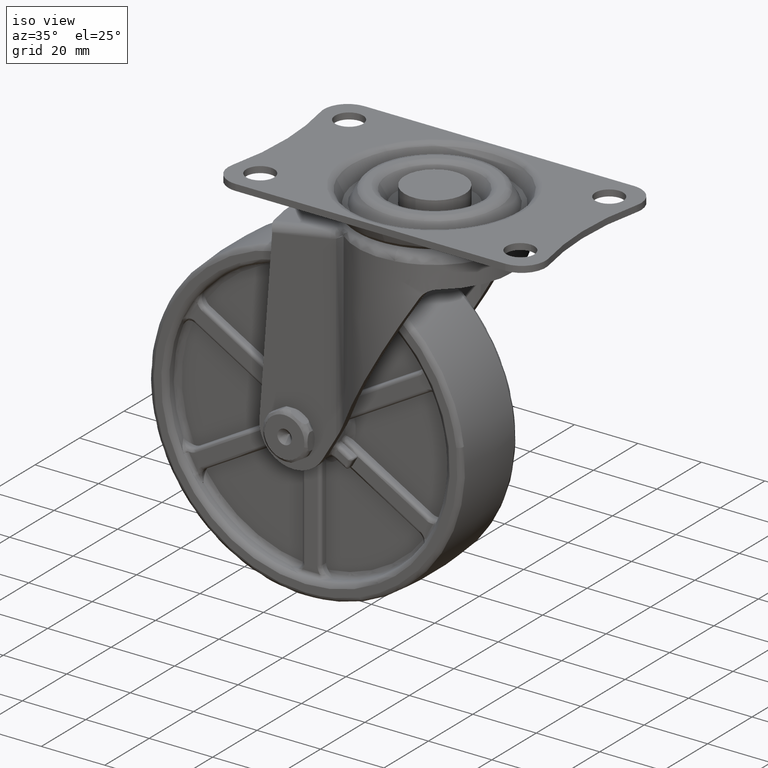
[diagram: clean part render]
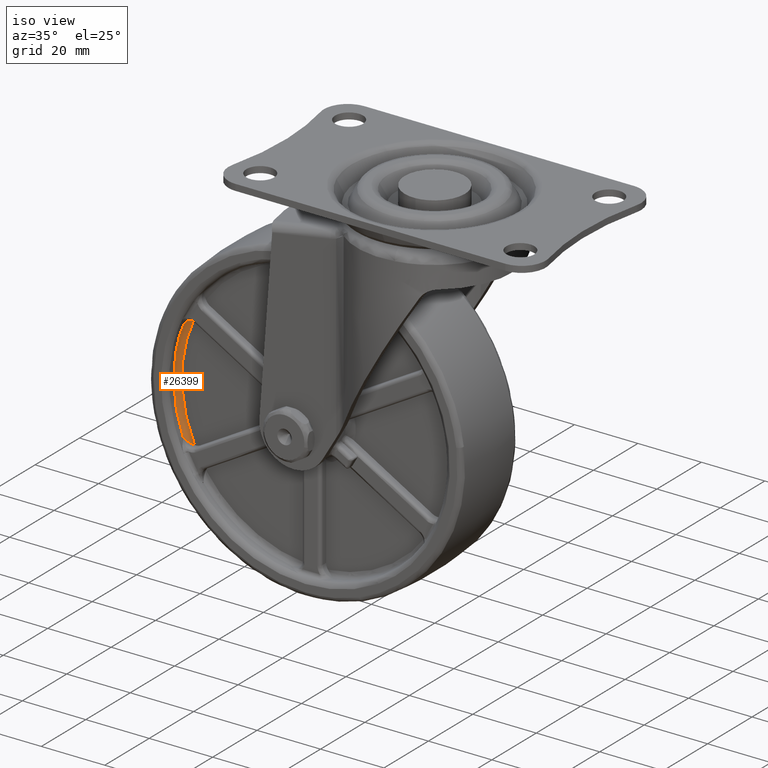
[diagram: same view with one face highlighted and labeled with its STEP entity id]
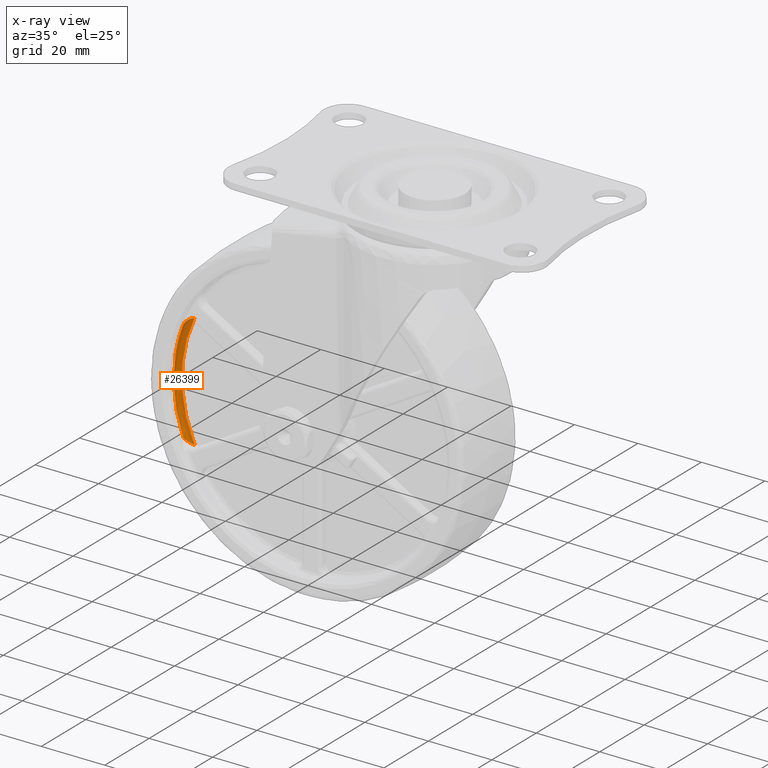
[diagram: x-ray of the same camera — body ghosted, the highlighted face saturated]
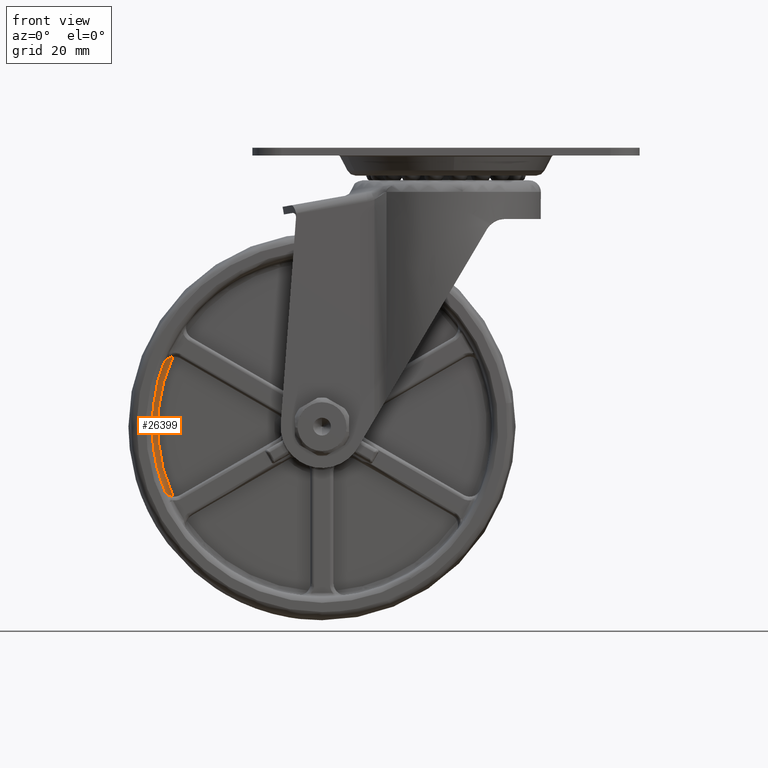
[diagram: same view with one face highlighted and labeled with its STEP entity id]
A machine part, iso view. The second image highlights one B-rep face of the part: STEP entity #26399.
The next image is the same camera in x-ray: the body ghosted, the highlighted face saturated — about 0% of this face is hidden behind the body in this view.
A second angle (front view) of the same face is appended — the face is thin or edge-on in the first view.
In plain terms, the highlighted face is a freeform B-spline surface patch.
Its self-contained STEP definition (entity closure, byte-faithful):
#3917=CARTESIAN_POINT('',(-72.914395647206106,-9.0,-53.813208198537602));
#3918=VERTEX_POINT('',#3917);
#5299=CARTESIAN_POINT('',(-72.914395885036797,-9.0,-86.186791895554194));
#5300=VERTEX_POINT('',#5299);
#22226=CARTESIAN_POINT('',(-70.470402237259506,-7.500000000000000,-88.063171141952310));
#22227=VERTEX_POINT('',#22226);
#22228=CARTESIAN_POINT('',(-72.914395885036797,-9.0,-86.186791895554194));
#22229=CARTESIAN_POINT('',(-72.908702617335962,-8.989535696261925,-86.201182101616382));
#22230=CARTESIAN_POINT('',(-72.902813369143502,-8.978734853724406,-86.215738611512450));
#22231=CARTESIAN_POINT('',(-72.890861923994109,-8.957394824286967,-86.244621922717698));
#22232=CARTESIAN_POINT('',(-72.872612270623492,-8.925428105459275,-86.287767791709925));
#22233=CARTESIAN_POINT('',(-72.827790348847003,-8.851116959345315,-86.387179716769381));
#22234=CARTESIAN_POINT('',(-72.785559635496995,-8.787925073971405,-86.470266048198880));
#22235=CARTESIAN_POINT('',(-72.696016410433515,-8.662310224850858,-86.633684229287738));
#22236=CARTESIAN_POINT('',(-72.629572154180252,-8.579585124270786,-86.738969280112173));
#22237=CARTESIAN_POINT('',(-72.482570166922926,-8.416829192059595,-86.942328883444503));
#22238=CARTESIAN_POINT('',(-72.402024570057392,-8.336790634396447,-87.040405381154585));
#22239=CARTESIAN_POINT('',(-72.269414437516630,-8.219482240654941,-87.181887724514482));
#22240=CARTESIAN_POINT('',(-72.223087900000280,-8.180732686167765,-87.228233475111821));
#22241=CARTESIAN_POINT('',(-72.127348643777097,-8.105249678760847,-87.317875448565715));
#22242=CARTESIAN_POINT('',(-72.077859502067270,-8.068434819909244,-87.361271683896419));
#22243=CARTESIAN_POINT('',(-71.924323047674690,-7.961046441683411,-87.487134383030977));
#22244=CARTESIAN_POINT('',(-71.815258377078734,-7.893481544485504,-87.565304875894270));
#22245=CARTESIAN_POINT('',(-71.640008079733136,-7.799935540149920,-87.673279373453070));
#22246=CARTESIAN_POINT('',(-71.579638056932637,-7.770063597226840,-87.707717296544416));
#22247=CARTESIAN_POINT('',(-71.454532246242167,-7.713417629868404,-87.773266081260601));
#22248=CARTESIAN_POINT('',(-71.390430552739360,-7.686940357820510,-87.804034592199727));
#22249=CARTESIAN_POINT('',(-71.193969708447142,-7.614045056852975,-87.889791221335685));
#22250=CARTESIAN_POINT('',(-71.057202678203836,-7.573864952638016,-87.938461582119785));
#22251=CARTESIAN_POINT('',(-70.877355572374029,-7.538018605235925,-87.987457041820747));
#22252=CARTESIAN_POINT('',(-70.840820761404018,-7.531564581156313,-87.996684441846483));
#22253=CARTESIAN_POINT('',(-70.767473368329874,-7.520373751038380,-88.013737439609045));
#22254=CARTESIAN_POINT('',(-70.730665167883458,-7.515630961999784,-88.021567755934896));
#22255=CARTESIAN_POINT('',(-70.619832395305693,-7.504101555700170,-88.042975431201612));
#22256=CARTESIAN_POINT('',(-70.545400666212217,-7.499999999998106,-88.054472798057148));
#22257=CARTESIAN_POINT('',(-70.470402237259506,-7.500000000000000,-88.063171141952310));
#22258=B_SPLINE_CURVE_WITH_KNOTS('',3,(#22228,#22229,#22230,#22231,#22232,#22233,#22234,#22235,#22236,#22237,#22238,#22239,#22240,#22241,#22242,#22243,#22244,#22245,#22246,#22247,#22248,#22249,#22250,#22251,#22252,#22253,#22254,#22255,#22256,#22257),.UNSPECIFIED.,.F.,.U.,(4,2,1,1,2,2,2,2,2,2,2,2,2,2,2,4),(0.0,0.015625000000006,0.031250000000013,0.062500000000017,0.125000000000016,0.250000000000010,0.375000000000005,0.437500000000005,0.500000000000006,0.625000000000000,0.687499999999996,0.749999999999993,0.874999999999991,0.906249999999990,0.937499999999990,1.0),.UNSPECIFIED.);
#22259=EDGE_CURVE('',#5300,#22227,#22258,.T.);
#22527=CARTESIAN_POINT('',(-70.470402237250710,-7.500000000000000,-51.936828858046503));
#22528=VERTEX_POINT('',#22527);
#22529=CARTESIAN_POINT('',(-70.470402237250710,-7.499999999999999,-51.936828858046532));
#22530=CARTESIAN_POINT('',(-70.508243024257894,-7.499999999999838,-51.941217645694998));
#22531=CARTESIAN_POINT('',(-70.546049260054389,-7.501054602804579,-51.946337628403732));
#22532=CARTESIAN_POINT('',(-70.620818191600719,-7.505077757625161,-51.957904677410660));
#22533=CARTESIAN_POINT('',(-70.657898621561301,-7.508045664662984,-51.964364762226737));
#22534=CARTESIAN_POINT('',(-70.768276942830497,-7.519575646276440,-51.985722386078670));
#22535=CARTESIAN_POINT('',(-70.840714402207595,-7.530752896035222,-52.002593659261862));
#22536=CARTESIAN_POINT('',(-70.983480293836152,-7.559134113965602,-52.041422109221017));
#22537=CARTESIAN_POINT('',(-71.053857026279246,-7.576356531539811,-52.063397303176266));
#22538=CARTESIAN_POINT('',(-71.192414227459423,-7.616135243524523,-52.112294186813138));
#22539=CARTESIAN_POINT('',(-71.259569212310737,-7.638387648539955,-52.138845929342487));
#22540=CARTESIAN_POINT('',(-71.455429783153420,-7.711053042212532,-52.224333111005443));
#22541=CARTESIAN_POINT('',(-71.578579264827681,-7.767308138115866,-52.289063269862687));
#22542=CARTESIAN_POINT('',(-71.753886918296885,-7.860644239239718,-52.396791814595232));
#22543=CARTESIAN_POINT('',(-71.810844879547872,-7.893334648297355,-52.434560384274661));
#22544=CARTESIAN_POINT('',(-71.921281255705807,-7.961180181436641,-52.513277703773319));
#22545=CARTESIAN_POINT('',(-71.974370370322603,-7.996084833664013,-52.553935528505242));
#22546=CARTESIAN_POINT('',(-72.127820332579020,-8.103312837832627,-52.679599087790471));
#22547=CARTESIAN_POINT('',(-72.222401653068516,-8.178127634473638,-52.768276084890353));
#22548=CARTESIAN_POINT('',(-72.397911468091934,-8.332927749992503,-52.954896836806007));
#22549=CARTESIAN_POINT('',(-72.478825289560305,-8.412925802674451,-53.052844585803612));
#22550=CARTESIAN_POINT('',(-72.590455836071044,-8.536162161260764,-53.206750865293174));
#22551=CARTESIAN_POINT('',(-72.626027173639088,-8.577788947110264,-53.259230194417647));
#22552=CARTESIAN_POINT('',(-72.693344159343468,-8.661284617046638,-53.365586201769482));
#22553=CARTESIAN_POINT('',(-72.757011882256961,-8.745210839695794,-53.473572947358782));
#22554=CARTESIAN_POINT('',(-72.813575608555965,-8.829837650197055,-53.584839552171182));
#22555=CARTESIAN_POINT('',(-72.853365672622203,-8.893517871317286,-53.669542928663262));
#22556=CARTESIAN_POINT('',(-72.866189877505505,-8.914779549433566,-53.697986547535820));
#22557=CARTESIAN_POINT('',(-72.890959886630284,-8.957366424549262,-53.755297025821619));
#22558=CARTESIAN_POINT('',(-72.902916048873379,-8.978899693663598,-53.784191531749080));
#22559=CARTESIAN_POINT('',(-72.914395647206106,-9.0,-53.813208198537602));
#22560=B_SPLINE_CURVE_WITH_KNOTS('',3,(#22529,#22530,#22531,#22532,#22533,#22534,#22535,#22536,#22537,#22538,#22539,#22540,#22541,#22542,#22543,#22544,#22545,#22546,#22547,#22548,#22549,#22550,#22551,#22552,#22553,#22554,#22555,#22556,#22557,#22558,#22559),.UNSPECIFIED.,.F.,.U.,(4,2,2,2,2,2,2,2,2,2,2,2,1,2,2,4),(0.0,0.031250000000002,0.062500000000004,0.124999999999996,0.187499999999987,0.249999999999979,0.374999999999972,0.437499999999973,0.499999999999974,0.624999999999981,0.749999999999988,0.812499999999990,0.874999999999993,0.937499999999996,0.968749999999998,1.0),.UNSPECIFIED.);
#22561=EDGE_CURVE('',#22528,#3918,#22560,.T.);
#25697=CARTESIAN_POINT('',(-72.914395885036797,-9.0,-86.186791895554194));
#25698=CARTESIAN_POINT('',(-79.318308614249446,-9.0,-69.999999999999929));
#25699=CARTESIAN_POINT('',(-72.914395647206007,-9.0,-53.813208198537637));
#25707=(BOUNDED_CURVE()B_SPLINE_CURVE(2,(#25697,#25698,#25699),.UNSPECIFIED.,.F.,.U.)CURVE()GEOMETRIC_REPRESENTATION_ITEM()QUASI_UNIFORM_CURVE()RATIONAL_B_SPLINE_CURVE((1.0,0.929872628345592,1.0))REPRESENTATION_ITEM(''));
#25708=EDGE_CURVE('',#5300,#3918,#25707,.T.);
#26364=CARTESIAN_POINT('',(-70.999497947745070,-9.104305799184157,-90.364666666101854));
#26365=CARTESIAN_POINT('',(-81.633472518853935,-9.104305799184155,-69.999998966794138));
#26366=CARTESIAN_POINT('',(-70.999497099894086,-9.104305799184154,-49.635331710215247));
#26367=CARTESIAN_POINT('',(-71.105813144071817,-7.383691910419747,-90.420182086778212));
#26368=CARTESIAN_POINT('',(-81.768776629237351,-7.383691910419747,-69.999998963977561));
#26369=CARTESIAN_POINT('',(-71.105812293909523,-7.383691910419747,-49.579816285112663));
#26370=CARTESIAN_POINT('',(-69.580617466746560,-7.503631093839937,-89.623758973564676));
#26371=CARTESIAN_POINT('',(-79.827706571416940,-7.503631093839937,-69.999999004384250));
#26372=CARTESIAN_POINT('',(-69.580616649742083,-7.503631093839935,-50.376239461825328));
#26380=(BOUNDED_SURFACE()B_SPLINE_SURFACE(2,2,((#26364,#26367,#26370),(#26365,#26368,#26371),(#26366,#26369,#26372)),.UNSPECIFIED.,.F.,.F.,.U.)B_SPLINE_SURFACE_WITH_KNOTS((3,3),(3,3),(0.0,43.181496275406332),(0.0,2.733563498740703),.UNSPECIFIED.)GEOMETRIC_REPRESENTATION_ITEM()RATIONAL_B_SPLINE_SURFACE(((0.857092873968233,0.562445440999803,0.857093370495376),(0.759748868304768,0.498565908387910,0.759749308439025),(0.857092882723934,0.562445446745510,0.857093379251082)))REPRESENTATION_ITEM('')SURFACE());
#26381=CARTESIAN_POINT('',(-70.470402237259506,-7.500000000000000,-88.063171141952324));
#26382=CARTESIAN_POINT('',(-78.951679601900608,-7.500000000000000,-69.999999999997357));
#26383=CARTESIAN_POINT('',(-70.470402237250710,-7.500000000000000,-51.936828858046503));
#26391=(BOUNDED_CURVE()B_SPLINE_CURVE(2,(#26381,#26382,#26383),.UNSPECIFIED.,.F.,.U.)CURVE()GEOMETRIC_REPRESENTATION_ITEM()QUASI_UNIFORM_CURVE()RATIONAL_B_SPLINE_CURVE((1.0,0.905185934994317,1.0))REPRESENTATION_ITEM(''));
#26392=EDGE_CURVE('',#22227,#22528,#26391,.T.);
#26393=ORIENTED_EDGE('',*,*,#26392,.T.);
#26394=ORIENTED_EDGE('',*,*,#22561,.T.);
#26395=ORIENTED_EDGE('',*,*,#25708,.F.);
#26396=ORIENTED_EDGE('',*,*,#22259,.T.);
#26397=EDGE_LOOP('',(#26393,#26394,#26395,#26396));
#26398=FACE_OUTER_BOUND('',#26397,.T.);
#26399=ADVANCED_FACE('',(#26398),#26380,.F.);